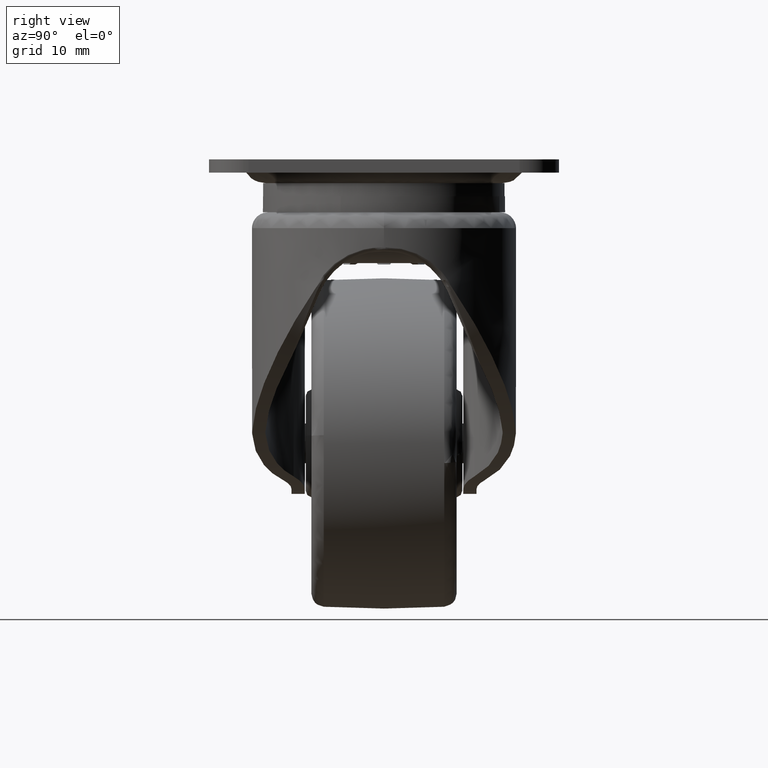
[diagram: clean part render]
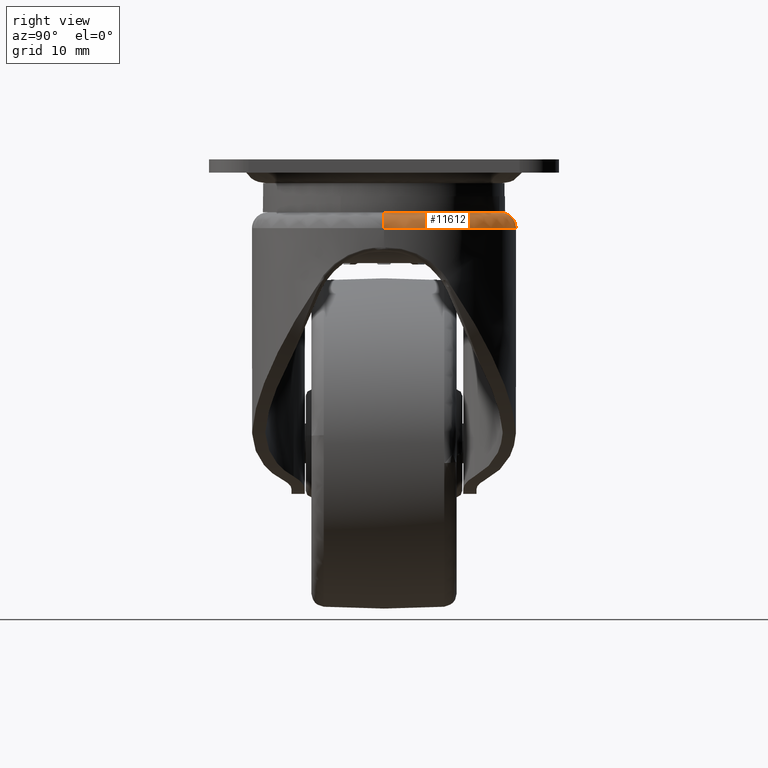
[diagram: same view with one face highlighted and labeled with its STEP entity id]
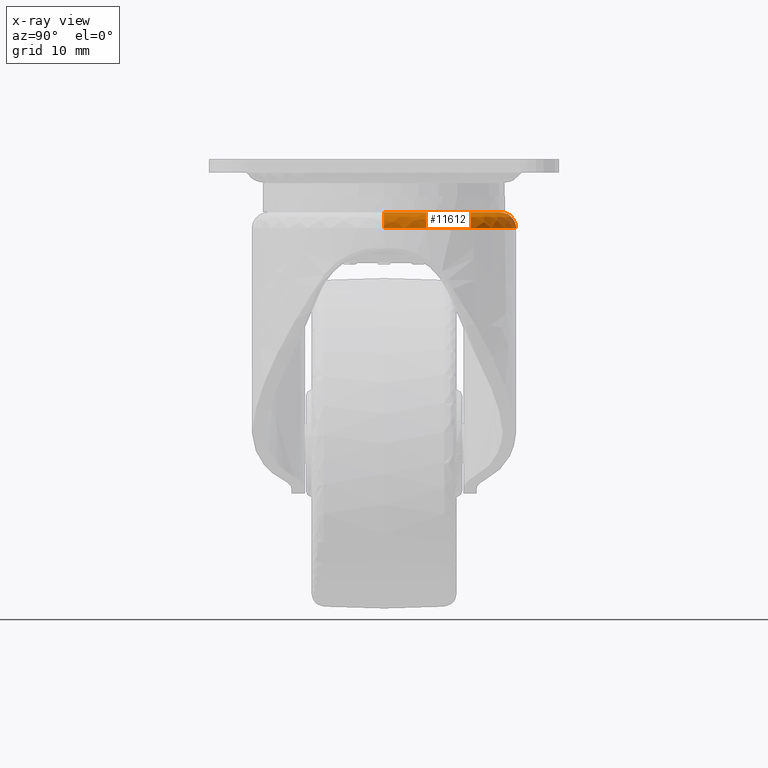
[diagram: x-ray of the same camera — body ghosted, the highlighted face saturated]
A machine part, right view. The second image highlights one B-rep face of the part: STEP entity #11612.
The next image is the same camera in x-ray: the body ghosted, the highlighted face saturated — about 0% of this face is hidden behind the body in this view.
In plain terms, the highlighted face is a freeform B-spline surface patch.
Its self-contained STEP definition (entity closure, byte-faithful):
#9017=CARTESIAN_POINT('',(17.584000000000000,0.004000000000004,-8.005000000000001));
#9018=VERTEX_POINT('',#9017);
#9024=CARTESIAN_POINT('',(0.004000000000094,17.584000000000000,-8.005000000000001));
#9025=VERTEX_POINT('',#9024);
#9026=CARTESIAN_POINT('',(17.584000000000000,0.004000000000004,-8.005000000000001));
#9027=CARTESIAN_POINT('',(17.584000000000099,17.584000000000000,-8.005000000000001));
#9028=CARTESIAN_POINT('',(0.004000000000094,17.584000000000000,-8.005000000000001));
#9036=(BOUNDED_CURVE()B_SPLINE_CURVE(2,(#9026,#9027,#9028),.UNSPECIFIED.,.F.,.U.)CURVE()GEOMETRIC_REPRESENTATION_ITEM()QUASI_UNIFORM_CURVE()RATIONAL_B_SPLINE_CURVE((1.0,0.707106781186547,1.0))REPRESENTATION_ITEM(''));
#9037=EDGE_CURVE('',#9018,#9025,#9036,.T.);
#11456=CARTESIAN_POINT('',(0.004000000000094,19.984000000000002,-10.404999999999999));
#11457=VERTEX_POINT('',#11456);
#11458=CARTESIAN_POINT('',(0.004000000000094,17.584000000000000,-8.005000000000001));
#11459=CARTESIAN_POINT('',(0.004000000000094,19.983999999999995,-8.005000000000001));
#11460=CARTESIAN_POINT('',(0.004000000000094,19.984000000000002,-10.404999999999999));
#11468=(BOUNDED_CURVE()B_SPLINE_CURVE(2,(#11458,#11459,#11460),.UNSPECIFIED.,.F.,.U.)CURVE()GEOMETRIC_REPRESENTATION_ITEM()QUASI_UNIFORM_CURVE()RATIONAL_B_SPLINE_CURVE((1.0,0.707106781186547,1.0))REPRESENTATION_ITEM(''));
#11469=EDGE_CURVE('',#9025,#11457,#11468,.T.);
#11563=CARTESIAN_POINT('',(19.929579340238995,-1.388685806578864,-10.571888853131449));
#11564=CARTESIAN_POINT('',(21.530970788892891,21.522908620679029,-10.571888853131449));
#11565=CARTESIAN_POINT('',(-1.381221887992444,19.930099621376684,-10.571888853131451));
#11566=CARTESIAN_POINT('',(20.121010759181654,-1.402065784924403,-7.818910351570795));
#11567=CARTESIAN_POINT('',(21.737787288091646,21.729647664047029,-7.818910351570794));
#11568=CARTESIAN_POINT('',(-1.394530158082907,20.121536038826783,-7.818910351570795));
#11569=CARTESIAN_POINT('',(17.374732229368036,-1.210116378381432,-8.010809554400341));
#11570=CARTESIAN_POINT('',(18.770794124180334,18.763765682856736,-8.010809554400341));
#11571=CARTESIAN_POINT('',(-1.203609479438479,17.375185800336901,-8.010809554400343));
#11579=(BOUNDED_SURFACE()B_SPLINE_SURFACE(2,2,((#11563,#11566,#11569),(#11564,#11567,#11570),(#11565,#11568,#11571)),.UNSPECIFIED.,.F.,.F.,.U.)B_SPLINE_SURFACE_WITH_KNOTS((3,3),(3,3),(0.0,36.400374411570873),(0.0,4.373697683642503),.UNSPECIFIED.)GEOMETRIC_REPRESENTATION_ITEM()RATIONAL_B_SPLINE_SURFACE(((0.840028347143787,0.551247581550745,0.840028452935070),(0.552780460859004,0.362748344401851,0.552780530474933),(0.844707285002777,0.554318017432777,0.844707391383314)))REPRESENTATION_ITEM('')SURFACE());
#11580=CARTESIAN_POINT('',(19.984000000000002,0.004000000000004,-10.404999999999999));
#11581=VERTEX_POINT('',#11580);
#11582=CARTESIAN_POINT('',(17.584000000000000,0.004000000000004,-8.005000000000001));
#11583=CARTESIAN_POINT('',(19.983999999999995,0.004000000000004,-8.005000000000001));
#11584=CARTESIAN_POINT('',(19.984000000000002,0.004000000000004,-10.404999999999999));
#11592=(BOUNDED_CURVE()B_SPLINE_CURVE(2,(#11582,#11583,#11584),.UNSPECIFIED.,.F.,.U.)CURVE()GEOMETRIC_REPRESENTATION_ITEM()QUASI_UNIFORM_CURVE()RATIONAL_B_SPLINE_CURVE((1.0,0.707106781186547,1.0))REPRESENTATION_ITEM(''));
#11593=EDGE_CURVE('',#9018,#11581,#11592,.T.);
#11594=ORIENTED_EDGE('',*,*,#11593,.T.);
#11595=CARTESIAN_POINT('',(0.004000000000094,19.984000000000009,-10.404999999999999));
#11596=CARTESIAN_POINT('',(19.984000000000091,19.984000000000005,-10.404999999999999));
#11597=CARTESIAN_POINT('',(19.984000000000002,0.004000000000004,-10.404999999999999));
#11605=(BOUNDED_CURVE()B_SPLINE_CURVE(2,(#11595,#11596,#11597),.UNSPECIFIED.,.F.,.U.)CURVE()GEOMETRIC_REPRESENTATION_ITEM()QUASI_UNIFORM_CURVE()RATIONAL_B_SPLINE_CURVE((1.0,0.707106781186548,1.0))REPRESENTATION_ITEM(''));
#11606=EDGE_CURVE('',#11457,#11581,#11605,.T.);
#11607=ORIENTED_EDGE('',*,*,#11606,.F.);
#11608=ORIENTED_EDGE('',*,*,#11469,.F.);
#11609=ORIENTED_EDGE('',*,*,#9037,.F.);
#11610=EDGE_LOOP('',(#11594,#11607,#11608,#11609));
#11611=FACE_OUTER_BOUND('',#11610,.T.);
#11612=ADVANCED_FACE('',(#11611),#11579,.T.);